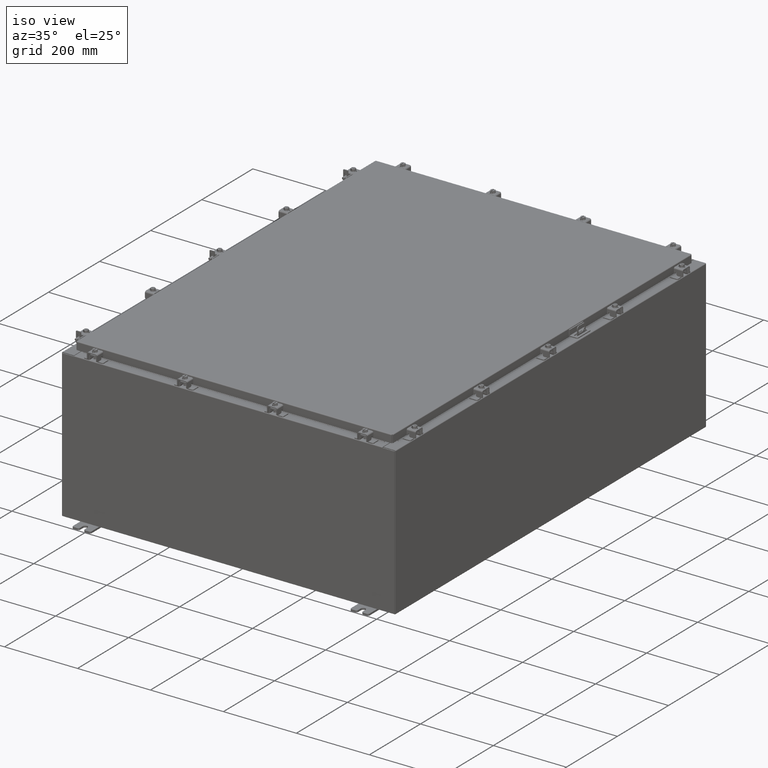
[diagram: clean part render]
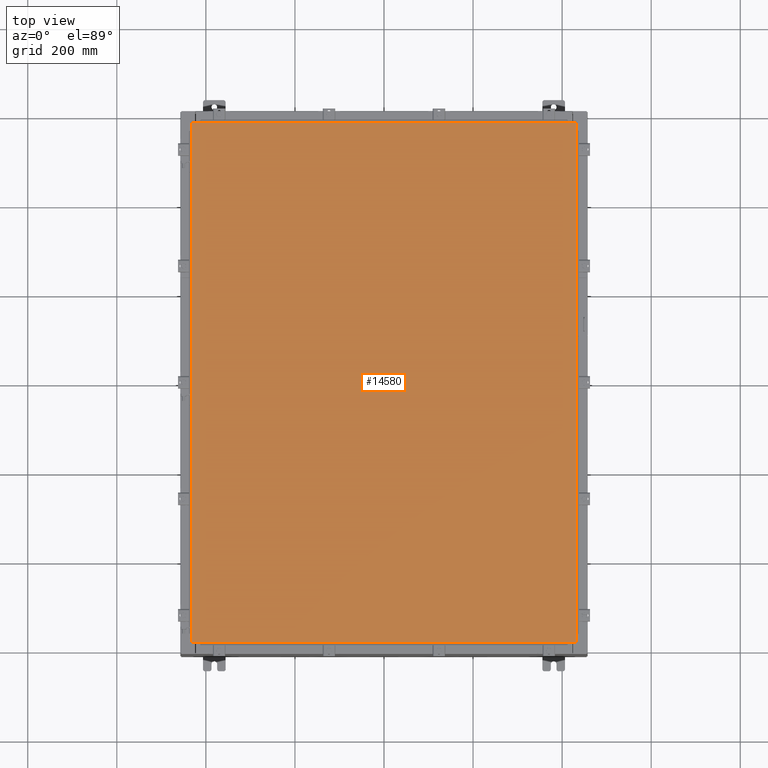
[diagram: tour spotlight — one face highlighted and labeled with its STEP entity id]
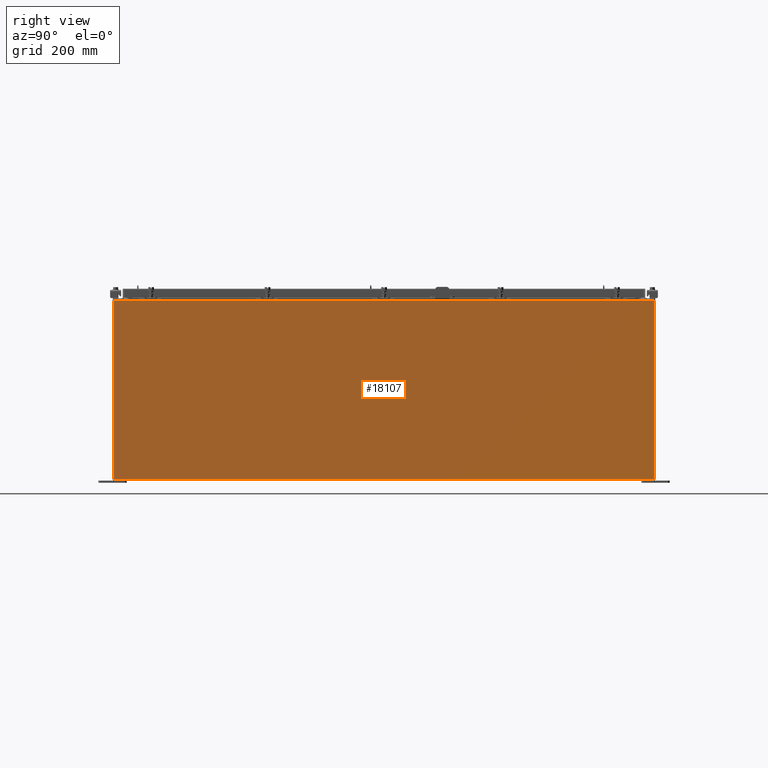
[diagram: tour spotlight — one face highlighted and labeled with its STEP entity id]
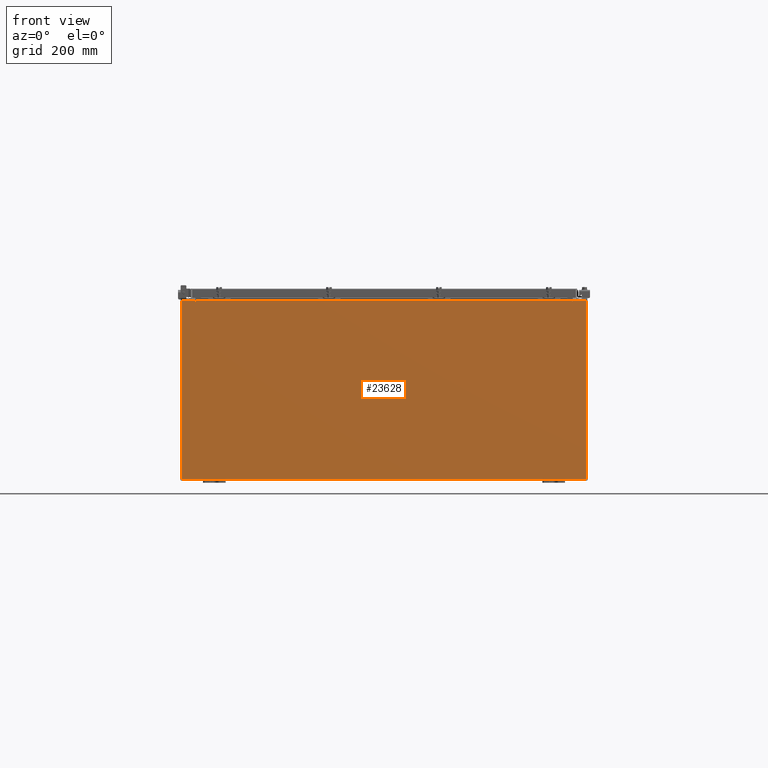
[diagram: tour spotlight — one face highlighted and labeled with its STEP entity id]
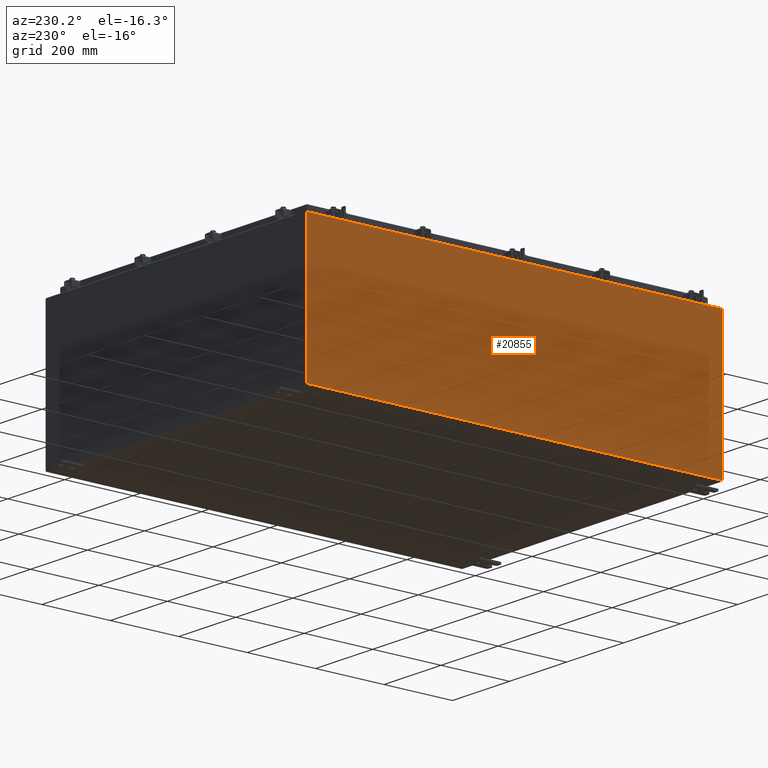
[diagram: tour spotlight — one face highlighted and labeled with its STEP entity id]
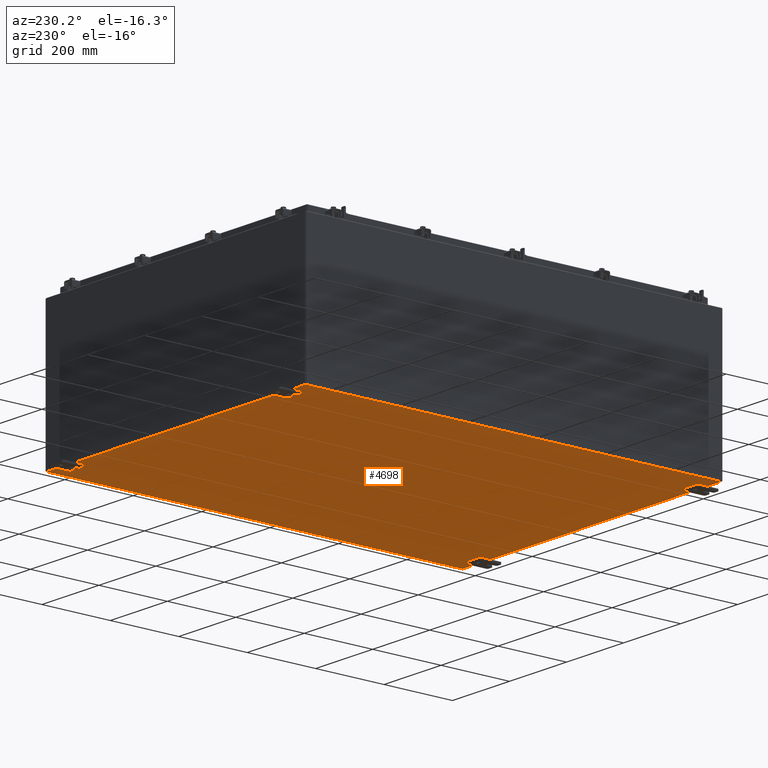
[diagram: tour spotlight — one face highlighted and labeled with its STEP entity id]
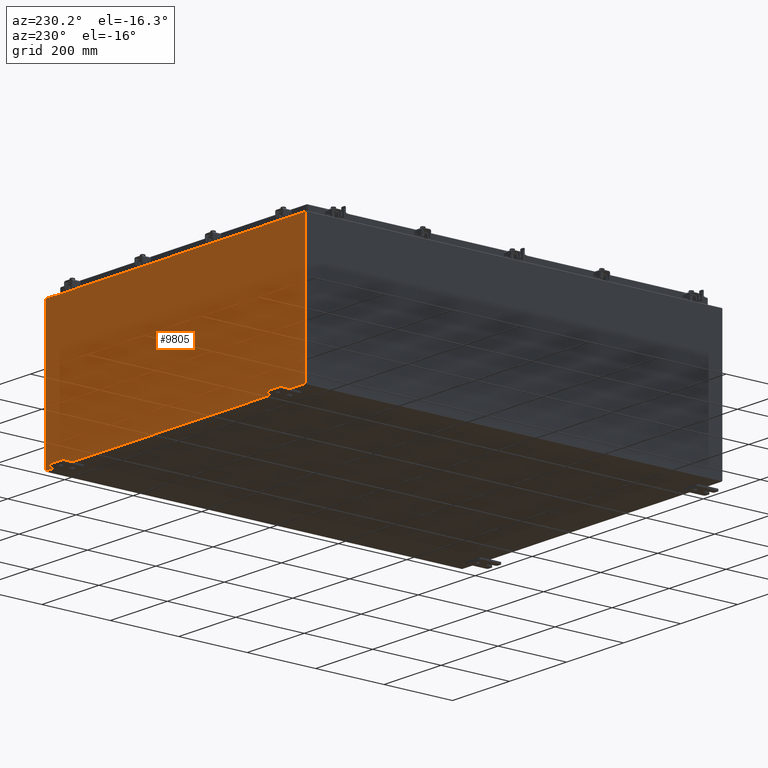
[diagram: tour spotlight — one face highlighted and labeled with its STEP entity id]
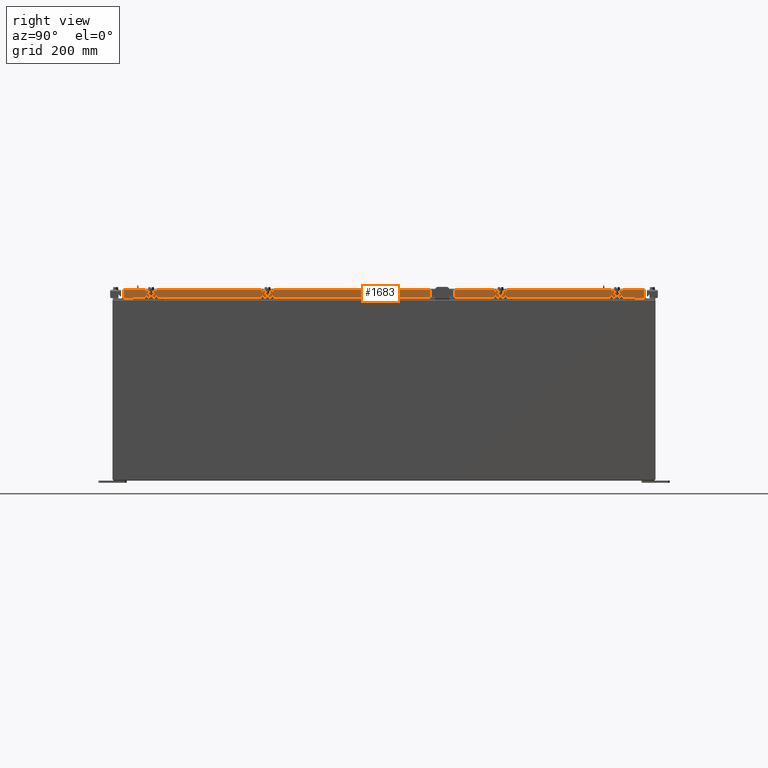
[diagram: tour spotlight — one face highlighted and labeled with its STEP entity id]
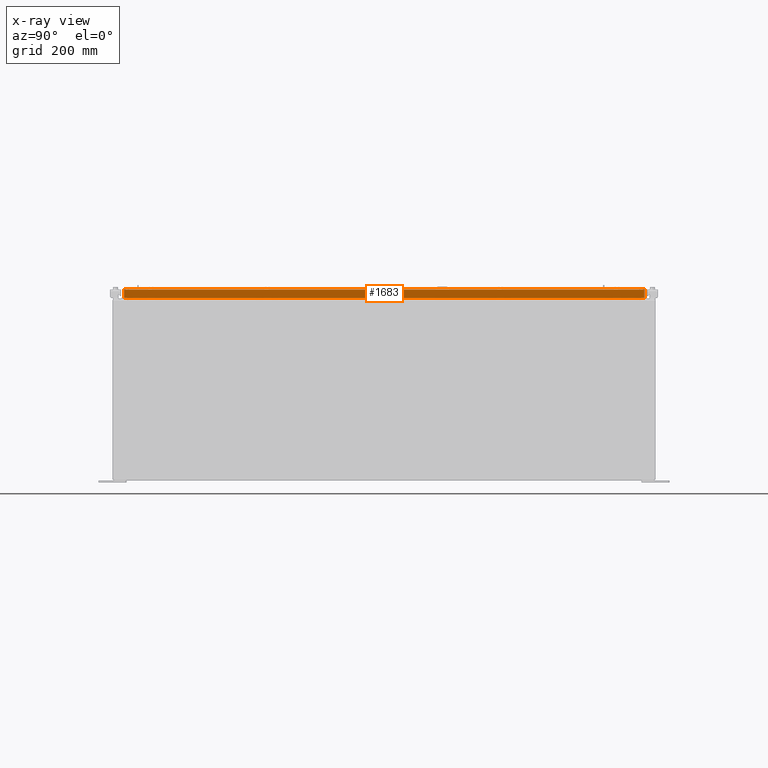
[diagram: x-ray of the same camera — body ghosted, this tour face saturated]
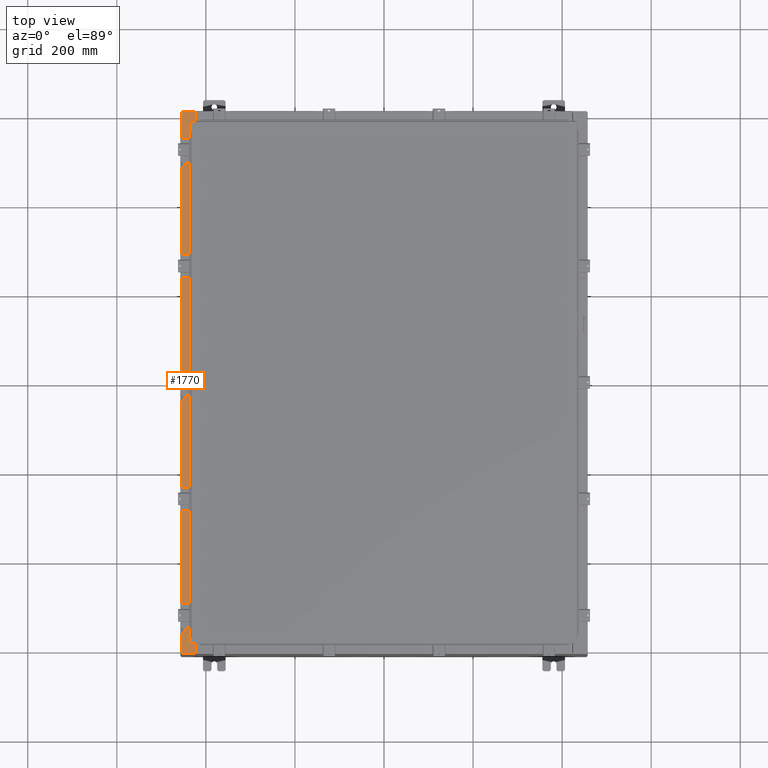
[diagram: tour spotlight — one face highlighted and labeled with its STEP entity id]
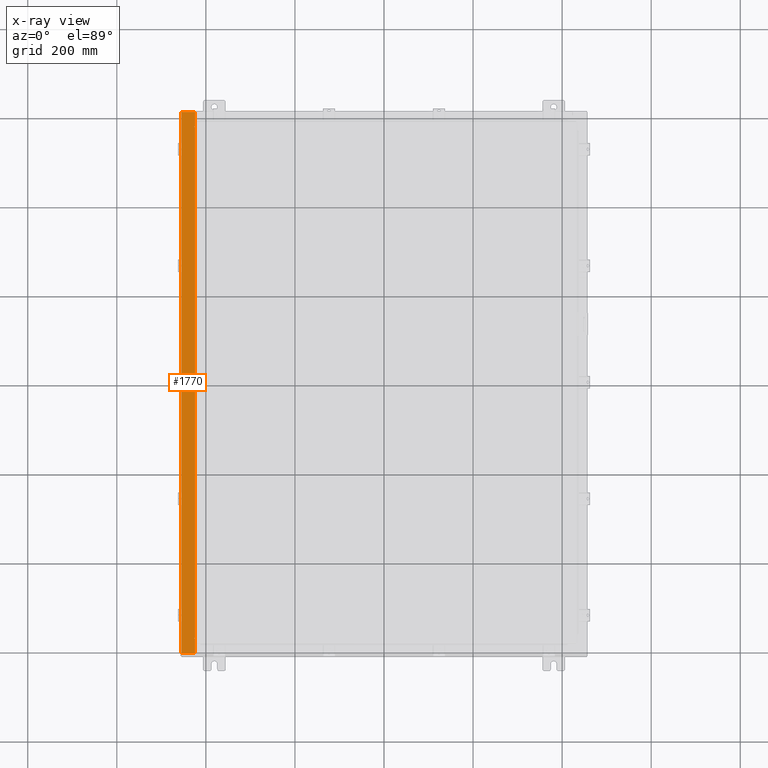
[diagram: x-ray of the same camera — body ghosted, this tour face saturated]
A machine part: a face-by-face anatomy tour. The part has 3106 B-rep faces; the first image is the clean iso view, then the 8 largest visible faces are spotlighted one at a time (largest first), each with its STEP entity span.

Face 1 — top view, entity #14580. In plain terms, the highlighted planar face has unit normal (0, 0, -1).
Definition (entity closure, byte-faithful):
#343 = VERTEX_POINT ( 'NONE', #18543 ) ;
#394 = DIRECTION ( 'NONE',  ( 0.0000000000000000000, -1.000000000000000000, 0.0000000000000000000 ) ) ;
#1682 = VECTOR ( 'NONE', #394, 39.37007874015748100 ) ;
#2509 = CARTESIAN_POINT ( 'NONE',  ( -16.99029999999999800, -23.00630000000000000, 2.185478394931410600E-015 ) ) ;
#2613 = LINE ( 'NONE', #18093, #7542 ) ;
#2720 = ORIENTED_EDGE ( 'NONE', *, *, #12445, .T. ) ;
#3431 = ORIENTED_EDGE ( 'NONE', *, *, #26626, .T. ) ;
#3873 = PLANE ( 'NONE',  #25420 ) ;
#4487 = ORIENTED_EDGE ( 'NONE', *, *, #18501, .T. ) ;
#4589 = DIRECTION ( 'NONE',  ( 1.000000000000000000, -0.0000000000000000000, -0.0000000000000000000 ) ) ;
#7028 = VERTEX_POINT ( 'NONE', #10307 ) ;
#7542 = VECTOR ( 'NONE', #15935, 39.37007874015748100 ) ;
#7572 = VECTOR ( 'NONE', #4589, 39.37007874015748100 ) ;
#9420 = FACE_OUTER_BOUND ( 'NONE', #18308, .T. ) ;
#10208 = DIRECTION ( 'NONE',  ( 0.0000000000000000000, 0.0000000000000000000, -1.000000000000000000 ) ) ;
#10307 = CARTESIAN_POINT ( 'NONE',  ( 16.99029999999999800, 23.00630000000000000, 2.185478394931410600E-015 ) ) ;
#12279 = CARTESIAN_POINT ( 'NONE',  ( -16.99029999999999800, 23.00629999999999600, 0.0000000000000000000 ) ) ;
#12445 = EDGE_CURVE ( 'NONE', #7028, #19993, #2613, .T. ) ;
#13658 = VECTOR ( 'NONE', #16423, 39.37007874015748100 ) ;
#14580 = ADVANCED_FACE ( 'NONE', ( #9420 ), #3873, .F. ) ;
#15053 = CARTESIAN_POINT ( 'NONE',  ( -16.99029999999999800, 23.00629999999999600, 0.0000000000000000000 ) ) ;
#15935 = DIRECTION ( 'NONE',  ( -1.000000000000000000, -0.0000000000000000000, -0.0000000000000000000 ) ) ;
#16423 = DIRECTION ( 'NONE',  ( 0.0000000000000000000, 1.000000000000000000, 0.0000000000000000000 ) ) ;
#16831 = VERTEX_POINT ( 'NONE', #20169 ) ;
#18093 = CARTESIAN_POINT ( 'NONE',  ( 16.99029999999999800, 23.00630000000000000, 2.185478394931410600E-015 ) ) ;
#18308 = EDGE_LOOP ( 'NONE', ( #4487, #3431, #2720, #22060 ) ) ;
#18501 = EDGE_CURVE ( 'NONE', #16831, #343, #25104, .T. ) ;
#18543 = CARTESIAN_POINT ( 'NONE',  ( 16.99030000000000100, -23.00629999999999600, -2.185478394931410600E-015 ) ) ;
#19993 = VERTEX_POINT ( 'NONE', #12279 ) ;
#20169 = CARTESIAN_POINT ( 'NONE',  ( -16.99029999999999800, -23.00630000000000000, 2.185478394931410600E-015 ) ) ;
#22060 = ORIENTED_EDGE ( 'NONE', *, *, #22274, .T. ) ;
#22274 = EDGE_CURVE ( 'NONE', #19993, #16831, #24788, .T. ) ;
#22908 = CARTESIAN_POINT ( 'NONE',  ( 0.0000000000000000000, 0.0000000000000000000, 0.0000000000000000000 ) ) ;
#24788 = LINE ( 'NONE', #15053, #1682 ) ;
#24922 = LINE ( 'NONE', #26938, #13658 ) ;
#25023 = DIRECTION ( 'NONE',  ( -1.000000000000000000, 0.0000000000000000000, -0.0000000000000000000 ) ) ;
#25104 = LINE ( 'NONE', #2509, #7572 ) ;
#25420 = AXIS2_PLACEMENT_3D ( 'NONE', #22908, #10208, #25023 ) ;
#26626 = EDGE_CURVE ( 'NONE', #343, #7028, #24922, .T. ) ;
#26938 = CARTESIAN_POINT ( 'NONE',  ( 16.99030000000000100, -23.00629999999999600, -2.185478394931410600E-015 ) ) ;

Face 2 — right view, entity #18107. In plain terms, the highlighted planar face has unit normal (-1, 0, 0).
Definition (entity closure, byte-faithful):
#530 = VECTOR ( 'NONE', #10461, 39.37007874015748100 ) ;
#1042 = EDGE_CURVE ( 'NONE', #4386, #9455, #3472, .T. ) ;
#1557 = EDGE_CURVE ( 'NONE', #4431, #25116, #6058, .T. ) ;
#2364 = ORIENTED_EDGE ( 'NONE', *, *, #19955, .T. ) ;
#3080 = CARTESIAN_POINT ( 'NONE',  ( 17.99999999999999600, 0.0000000000000000000, -6.228613425554519900E-014 ) ) ;
#3170 = DIRECTION ( 'NONE',  ( -3.430827668758847500E-015, 0.0000000000000000000, -1.000000000000000000 ) ) ;
#3346 = EDGE_LOOP ( 'NONE', ( #2364, #6004, #15743, #22625 ) ) ;
#3472 = LINE ( 'NONE', #23834, #25274 ) ;
#4386 = VERTEX_POINT ( 'NONE', #15395 ) ;
#4431 = VERTEX_POINT ( 'NONE', #9636 ) ;
#5085 = PLANE ( 'NONE',  #24259 ) ;
#5819 = CARTESIAN_POINT ( 'NONE',  ( 18.00000000000005000, 23.92529999999998900, 15.83760000000001400 ) ) ;
#6004 = ORIENTED_EDGE ( 'NONE', *, *, #1042, .T. ) ;
#6058 = LINE ( 'NONE', #16168, #530 ) ;
#7297 = DIRECTION ( 'NONE',  ( 3.430827668758846700E-015, 0.0000000000000000000, 1.000000000000000000 ) ) ;
#7933 = DIRECTION ( 'NONE',  ( -0.0000000000000000000, -1.000000000000000000, -0.0000000000000000000 ) ) ;
#9455 = VERTEX_POINT ( 'NONE', #21977 ) ;
#9636 = CARTESIAN_POINT ( 'NONE',  ( 17.99999999999999600, 23.92529999999998600, 0.01300000000000229300 ) ) ;
#10461 = DIRECTION ( 'NONE',  ( 3.430827668758847500E-015, 0.0000000000000000000, 1.000000000000000000 ) ) ;
#10936 = LINE ( 'NONE', #5819, #27141 ) ;
#14536 = CARTESIAN_POINT ( 'NONE',  ( 17.99999999999999600, -23.92529999999998900, 0.01300000000000010700 ) ) ;
#14626 = DIRECTION ( 'NONE',  ( -1.566960444969418600E-031, -1.000000000000000000, -4.567295697298285000E-017 ) ) ;
#15395 = CARTESIAN_POINT ( 'NONE',  ( 18.00000000000005000, -23.92529999999998900, 15.83760000000000200 ) ) ;
#15743 = ORIENTED_EDGE ( 'NONE', *, *, #17080, .F. ) ;
#16168 = CARTESIAN_POINT ( 'NONE',  ( 17.99999999999999600, 23.92529999999998900, -6.228613425554519900E-014 ) ) ;
#16202 = FACE_OUTER_BOUND ( 'NONE', #3346, .T. ) ;
#16249 = VECTOR ( 'NONE', #14626, 39.37007874015748100 ) ;
#16366 = CARTESIAN_POINT ( 'NONE',  ( 18.00000000000005000, 23.92529999999998600, 15.83760000000001400 ) ) ;
#17080 = EDGE_CURVE ( 'NONE', #4431, #9455, #21894, .T. ) ;
#18107 = ADVANCED_FACE ( 'NONE', ( #16202 ), #5085, .F. ) ;
#19955 = EDGE_CURVE ( 'NONE', #25116, #4386, #10936, .T. ) ;
#20009 = DIRECTION ( 'NONE',  ( -1.000000000000000000, 0.0000000000000000000, 3.430827668758846700E-015 ) ) ;
#21894 = LINE ( 'NONE', #14536, #16249 ) ;
#21977 = CARTESIAN_POINT ( 'NONE',  ( 17.99999999999999600, -23.92529999999998900, 0.01299999999999901400 ) ) ;
#22625 = ORIENTED_EDGE ( 'NONE', *, *, #1557, .T. ) ;
#23834 = CARTESIAN_POINT ( 'NONE',  ( 17.99999999999999600, -23.92529999999998900, -6.228613425554519900E-014 ) ) ;
#24259 = AXIS2_PLACEMENT_3D ( 'NONE', #3080, #20009, #7297 ) ;
#25116 = VERTEX_POINT ( 'NONE', #16366 ) ;
#25274 = VECTOR ( 'NONE', #3170, 39.37007874015748100 ) ;
#27141 = VECTOR ( 'NONE', #7933, 39.37007874015748100 ) ;

Face 3 — front view, entity #23628. In plain terms, the highlighted planar face has unit normal (0, 1, -0).
Definition (entity closure, byte-faithful):
#63 = VERTEX_POINT ( 'NONE', #11701 ) ;
#127 = CARTESIAN_POINT ( 'NONE',  ( -17.92530000000000000, 0.0000000000000000000, -7.925300000000016000 ) ) ;
#429 = VERTEX_POINT ( 'NONE', #12732 ) ;
#551 = VERTEX_POINT ( 'NONE', #8391 ) ;
#661 = EDGE_CURVE ( 'NONE', #19381, #14675, #12051, .T. ) ;
#897 = VECTOR ( 'NONE', #17053, 39.37007874015748100 ) ;
#1186 = VECTOR ( 'NONE', #17165, 39.37007874015748100 ) ;
#1198 = VERTEX_POINT ( 'NONE', #21445 ) ;
#1285 = LINE ( 'NONE', #25823, #16750 ) ;
#1544 = EDGE_CURVE ( 'NONE', #14675, #429, #6706, .T. ) ;
#1777 = VECTOR ( 'NONE', #21071, 39.37007874015748100 ) ;
#1868 = PLANE ( 'NONE',  #18217 ) ;
#1916 = CARTESIAN_POINT ( 'NONE',  ( -16.63720000000000400, -4.370956789862821100E-015, 7.912299999999989500 ) ) ;
#2004 = DIRECTION ( 'NONE',  ( 1.000000000000000000, 3.225867722578232700E-016, 9.992007221626408900E-016 ) ) ;
#2369 = CIRCLE ( 'NONE', #19530, 0.01867499999999949400 ) ;
#2559 = VECTOR ( 'NONE', #8968, 39.37007874015748100 ) ;
#2569 = EDGE_CURVE ( 'NONE', #7300, #63, #12940, .T. ) ;
#2729 = ORIENTED_EDGE ( 'NONE', *, *, #19826, .F. ) ;
#2763 = LINE ( 'NONE', #1916, #8326 ) ;
#3090 = EDGE_CURVE ( 'NONE', #18361, #63, #2763, .T. ) ;
#3493 = EDGE_CURVE ( 'NONE', #551, #18762, #12948, .T. ) ;
#3738 = ORIENTED_EDGE ( 'NONE', *, *, #3493, .T. ) ;
#3804 = ORIENTED_EDGE ( 'NONE', *, *, #2569, .F. ) ;
#4130 = CARTESIAN_POINT ( 'NONE',  ( -17.92530000000000000, 0.0000000000000000000, 7.925299999999983100 ) ) ;
#4417 = ORIENTED_EDGE ( 'NONE', *, *, #5374, .T. ) ;
#5035 = CARTESIAN_POINT ( 'NONE',  ( -17.92530000000000000, 0.0000000000000000000, -7.925300000000016000 ) ) ;
#5374 = EDGE_CURVE ( 'NONE', #18762, #19381, #25393, .T. ) ;
#6060 = DIRECTION ( 'NONE',  ( -3.225867722578236700E-016, -1.000000000000000000, -2.013110121372518100E-016 ) ) ;
#6137 = CARTESIAN_POINT ( 'NONE',  ( -17.92530000000000000, 0.0000000000000000000, 7.925299999999983100 ) ) ;
#6222 = VERTEX_POINT ( 'NONE', #11119 ) ;
#6283 = EDGE_CURVE ( 'NONE', #18361, #1198, #1285, .T. ) ;
#6706 = LINE ( 'NONE', #19758, #1186 ) ;
#6850 = ORIENTED_EDGE ( 'NONE', *, *, #6283, .F. ) ;
#7300 = VERTEX_POINT ( 'NONE', #9944 ) ;
#7343 = VECTOR ( 'NONE', #18993, 39.37007874015748100 ) ;
#7584 = CARTESIAN_POINT ( 'NONE',  ( 16.65587500000000200, 0.0000000000000000000, 7.874950000000016100 ) ) ;
#8122 = LINE ( 'NONE', #17396, #2559 ) ;
#8326 = VECTOR ( 'NONE', #2004, 39.37007874015748100 ) ;
#8391 = CARTESIAN_POINT ( 'NONE',  ( 17.92530000000000000, 0.0000000000000000000, 7.925300000000014200 ) ) ;
#8968 = DIRECTION ( 'NONE',  ( 9.992007221626408900E-016, -2.013110121372521300E-016, 1.000000000000000000 ) ) ;
#9506 = FACE_OUTER_BOUND ( 'NONE', #13136, .T. ) ;
#9649 = EDGE_CURVE ( 'NONE', #27107, #23593, #23206, .T. ) ;
#9707 = DIRECTION ( 'NONE',  ( 0.0000000000000000000, 2.013110121372521000E-016, -1.000000000000000000 ) ) ;
#9944 = CARTESIAN_POINT ( 'NONE',  ( 16.63720000000000400, 0.0000000000000000000, 7.874950000000016100 ) ) ;
#10202 = CARTESIAN_POINT ( 'NONE',  ( 0.0000000000000000000, 0.0000000000000000000, 0.0000000000000000000 ) ) ;
#11119 = CARTESIAN_POINT ( 'NONE',  ( -16.67455000000000000, 0.0000000000000000000, 7.874949999999983200 ) ) ;
#11401 = CARTESIAN_POINT ( 'NONE',  ( 16.67455000000000700, 0.0000000000000000000, 7.925300000000014200 ) ) ;
#11686 = ORIENTED_EDGE ( 'NONE', *, *, #3090, .T. ) ;
#11701 = CARTESIAN_POINT ( 'NONE',  ( 16.63720000000000400, 0.0000000000000000000, 7.912300000000016100 ) ) ;
#11993 = DIRECTION ( 'NONE',  ( 3.225867722578232700E-016, 1.000000000000000000, -2.013110121372520500E-016 ) ) ;
#12051 = LINE ( 'NONE', #25307, #897 ) ;
#12628 = CARTESIAN_POINT ( 'NONE',  ( -16.63720000000000400, -4.370956789862821100E-015, 7.912299999999989500 ) ) ;
#12732 = CARTESIAN_POINT ( 'NONE',  ( -16.67455000000000000, 0.0000000000000000000, 7.925299999999983100 ) ) ;
#12940 = LINE ( 'NONE', #19344, #7343 ) ;
#12948 = LINE ( 'NONE', #20645, #1777 ) ;
#13136 = EDGE_LOOP ( 'NONE', ( #23187, #18446, #6850, #11686, #3804, #2729, #22056, #17442, #3738, #4417, #21241, #23129 ) ) ;
#13527 = EDGE_CURVE ( 'NONE', #6222, #429, #8122, .T. ) ;
#14000 = CARTESIAN_POINT ( 'NONE',  ( 17.92530000000000000, 0.0000000000000000000, -7.925299999999983100 ) ) ;
#14126 = VECTOR ( 'NONE', #25957, 39.37007874015748100 ) ;
#14675 = VERTEX_POINT ( 'NONE', #4130 ) ;
#16307 = AXIS2_PLACEMENT_3D ( 'NONE', #7584, #22407, #9707 ) ;
#16750 = VECTOR ( 'NONE', #23520, 39.37007874015748100 ) ;
#16906 = LINE ( 'NONE', #6137, #23876 ) ;
#17053 = DIRECTION ( 'NONE',  ( 9.992007221626408900E-016, -2.013110121372521300E-016, 1.000000000000000000 ) ) ;
#17067 = EDGE_CURVE ( 'NONE', #27107, #551, #16906, .T. ) ;
#17165 = DIRECTION ( 'NONE',  ( 1.000000000000000000, 3.225867722578232700E-016, 9.382400019813492300E-016 ) ) ;
#17396 = CARTESIAN_POINT ( 'NONE',  ( -16.67455000000000000, 0.0000000000000000000, -1.639108796198557900E-014 ) ) ;
#17442 = ORIENTED_EDGE ( 'NONE', *, *, #17067, .T. ) ;
#17584 = VECTOR ( 'NONE', #24625, 39.37007874015748100 ) ;
#18217 = AXIS2_PLACEMENT_3D ( 'NONE', #10202, #6060, #20886 ) ;
#18361 = VERTEX_POINT ( 'NONE', #12628 ) ;
#18446 = ORIENTED_EDGE ( 'NONE', *, *, #20466, .F. ) ;
#18595 = CARTESIAN_POINT ( 'NONE',  ( 16.67455000000000000, 0.0000000000000000000, 7.874950000000016100 ) ) ;
#18612 = CIRCLE ( 'NONE', #16307, 0.01867499999999949400 ) ;
#18762 = VERTEX_POINT ( 'NONE', #14000 ) ;
#18849 = DIRECTION ( 'NONE',  ( 1.000000000000000000, 3.225867722578232700E-016, 9.382400019813492300E-016 ) ) ;
#18993 = DIRECTION ( 'NONE',  ( 9.992007221626408900E-016, -2.013110121372521300E-016, 1.000000000000000000 ) ) ;
#19344 = CARTESIAN_POINT ( 'NONE',  ( 16.63720000000000400, 0.0000000000000000000, 1.639108796198557900E-014 ) ) ;
#19381 = VERTEX_POINT ( 'NONE', #5035 ) ;
#19530 = AXIS2_PLACEMENT_3D ( 'NONE', #24671, #11993, #26780 ) ;
#19758 = CARTESIAN_POINT ( 'NONE',  ( -17.92530000000000000, 0.0000000000000000000, 7.925299999999983100 ) ) ;
#19826 = EDGE_CURVE ( 'NONE', #23593, #7300, #18612, .T. ) ;
#20466 = EDGE_CURVE ( 'NONE', #1198, #6222, #2369, .T. ) ;
#20645 = CARTESIAN_POINT ( 'NONE',  ( 17.92530000000000000, 0.0000000000000000000, 7.925300000000014200 ) ) ;
#20886 = DIRECTION ( 'NONE',  ( -9.992007221626408900E-016, 2.013110121372521300E-016, -1.000000000000000000 ) ) ;
#21071 = DIRECTION ( 'NONE',  ( -9.992007221626414800E-016, 2.013110121372520300E-016, -1.000000000000000000 ) ) ;
#21241 = ORIENTED_EDGE ( 'NONE', *, *, #661, .T. ) ;
#21445 = CARTESIAN_POINT ( 'NONE',  ( -16.63720000000000400, 0.0000000000000000000, 7.874949999999983200 ) ) ;
#22056 = ORIENTED_EDGE ( 'NONE', *, *, #9649, .F. ) ;
#22407 = DIRECTION ( 'NONE',  ( 3.225867722578232700E-016, 1.000000000000000000, -2.013110121372520500E-016 ) ) ;
#22517 = CARTESIAN_POINT ( 'NONE',  ( 16.67454999999931800, 0.0000000000000000000, -1.431078571481024200E-012 ) ) ;
#23129 = ORIENTED_EDGE ( 'NONE', *, *, #1544, .T. ) ;
#23187 = ORIENTED_EDGE ( 'NONE', *, *, #13527, .F. ) ;
#23206 = LINE ( 'NONE', #22517, #17584 ) ;
#23520 = DIRECTION ( 'NONE',  ( -9.992007221626408900E-016, 2.013110121372521300E-016, -1.000000000000000000 ) ) ;
#23593 = VERTEX_POINT ( 'NONE', #18595 ) ;
#23628 = ADVANCED_FACE ( 'NONE', ( #9506 ), #1868, .F. ) ;
#23876 = VECTOR ( 'NONE', #18849, 39.37007874015748100 ) ;
#24625 = DIRECTION ( 'NONE',  ( -8.781065633016651300E-014, 2.013110121372241000E-016, -1.000000000000000000 ) ) ;
#24671 = CARTESIAN_POINT ( 'NONE',  ( -16.65587500000000200, 0.0000000000000000000, 7.874949999999983200 ) ) ;
#25307 = CARTESIAN_POINT ( 'NONE',  ( -17.92530000000000000, 0.0000000000000000000, 7.925299999999983100 ) ) ;
#25393 = LINE ( 'NONE', #127, #14126 ) ;
#25823 = CARTESIAN_POINT ( 'NONE',  ( -16.63720000000000400, 0.0000000000000000000, -1.639108796198557900E-014 ) ) ;
#25957 = DIRECTION ( 'NONE',  ( -1.000000000000000000, -3.225867722578232700E-016, -9.992007221626408900E-016 ) ) ;
#26780 = DIRECTION ( 'NONE',  ( 0.0000000000000000000, 2.013110121372521000E-016, -1.000000000000000000 ) ) ;
#27107 = VERTEX_POINT ( 'NONE', #11401 ) ;

Face 4 — auxiliary view, entity #20855. In plain terms, the highlighted planar face has unit normal (1, 0, 0).
Definition (entity closure, byte-faithful):
#521 = EDGE_CURVE ( 'NONE', #8528, #21095, #2846, .T. ) ;
#1527 = CARTESIAN_POINT ( 'NONE',  ( -18.00000000000006000, -23.92529999999998900, 15.83759999999998200 ) ) ;
#1711 = AXIS2_PLACEMENT_3D ( 'NONE', #8818, #17341, #4662 ) ;
#2593 = PLANE ( 'NONE',  #1711 ) ;
#2806 = LINE ( 'NONE', #19215, #24608 ) ;
#2846 = LINE ( 'NONE', #24207, #24642 ) ;
#3057 = LINE ( 'NONE', #5381, #24214 ) ;
#3281 = DIRECTION ( 'NONE',  ( 3.430827668758847900E-015, 0.0000000000000000000, -1.000000000000000000 ) ) ;
#4151 = ORIENTED_EDGE ( 'NONE', *, *, #521, .T. ) ;
#4314 = CARTESIAN_POINT ( 'NONE',  ( -18.00000000000000400, 23.92529999999998900, 0.01300000000000010700 ) ) ;
#4662 = DIRECTION ( 'NONE',  ( 3.430827668758847900E-015, 0.0000000000000000000, -1.000000000000000000 ) ) ;
#4945 = ORIENTED_EDGE ( 'NONE', *, *, #26826, .F. ) ;
#5055 = VECTOR ( 'NONE', #16250, 39.37007874015748100 ) ;
#5347 = CARTESIAN_POINT ( 'NONE',  ( -18.00000000000000400, -23.92529999999998600, 0.01300000000000010700 ) ) ;
#5381 = CARTESIAN_POINT ( 'NONE',  ( -18.00000000000000400, 23.92529999999998900, -6.228613425554519900E-014 ) ) ;
#5705 = CARTESIAN_POINT ( 'NONE',  ( -18.00000000000006000, 23.92529999999998900, 15.83759999999999500 ) ) ;
#5750 = VERTEX_POINT ( 'NONE', #5705 ) ;
#6133 = EDGE_LOOP ( 'NONE', ( #18652, #24123, #4945, #4151 ) ) ;
#8528 = VERTEX_POINT ( 'NONE', #5347 ) ;
#8584 = EDGE_CURVE ( 'NONE', #21095, #5750, #22621, .T. ) ;
#8818 = CARTESIAN_POINT ( 'NONE',  ( -18.00000000000000400, 0.0000000000000000000, -6.228613425554519900E-014 ) ) ;
#13023 = VERTEX_POINT ( 'NONE', #4314 ) ;
#16250 = DIRECTION ( 'NONE',  ( 0.0000000000000000000, 1.000000000000000000, 0.0000000000000000000 ) ) ;
#17341 = DIRECTION ( 'NONE',  ( 1.000000000000000000, 0.0000000000000000000, 3.430827668758847900E-015 ) ) ;
#18652 = ORIENTED_EDGE ( 'NONE', *, *, #8584, .T. ) ;
#19209 = FACE_OUTER_BOUND ( 'NONE', #6133, .T. ) ;
#19215 = CARTESIAN_POINT ( 'NONE',  ( -18.00000000000000400, 23.92529999999998900, 0.01300000000000010700 ) ) ;
#19797 = EDGE_CURVE ( 'NONE', #5750, #13023, #3057, .T. ) ;
#20855 = ADVANCED_FACE ( 'NONE', ( #19209 ), #2593, .F. ) ;
#21095 = VERTEX_POINT ( 'NONE', #24470 ) ;
#21324 = DIRECTION ( 'NONE',  ( -0.0000000000000000000, 1.000000000000000000, -0.0000000000000000000 ) ) ;
#22621 = LINE ( 'NONE', #1527, #5055 ) ;
#24123 = ORIENTED_EDGE ( 'NONE', *, *, #19797, .T. ) ;
#24207 = CARTESIAN_POINT ( 'NONE',  ( -18.00000000000000400, -23.92529999999999600, -6.228613425554519900E-014 ) ) ;
#24214 = VECTOR ( 'NONE', #3281, 39.37007874015748100 ) ;
#24470 = CARTESIAN_POINT ( 'NONE',  ( -18.00000000000006000, -23.92529999999998600, 15.83759999999998200 ) ) ;
#24608 = VECTOR ( 'NONE', #21324, 39.37007874015748100 ) ;
#24642 = VECTOR ( 'NONE', #24966, 39.37007874015748100 ) ;
#24966 = DIRECTION ( 'NONE',  ( -3.430827668758847900E-015, 0.0000000000000000000, 1.000000000000000000 ) ) ;
#26826 = EDGE_CURVE ( 'NONE', #8528, #13023, #2806, .T. ) ;

Face 5 — auxiliary view, entity #4698. In plain terms, the highlighted planar face has unit normal (0, 0, -1).
Definition (entity closure, byte-faithful):
#1038 = DIRECTION ( 'NONE',  ( 1.000000000000000000, 1.214154663850783700E-016, 0.0000000000000000000 ) ) ;
#2621 = EDGE_CURVE ( 'NONE', #19086, #12702, #5719, .T. ) ;
#3076 = AXIS2_PLACEMENT_3D ( 'NONE', #16175, #15128, #15075 ) ;
#3137 = ORIENTED_EDGE ( 'NONE', *, *, #21556, .F. ) ;
#3683 = VERTEX_POINT ( 'NONE', #13552 ) ;
#4698 = ADVANCED_FACE ( 'NONE', ( #21145 ), #15224, .T. ) ;
#5719 = LINE ( 'NONE', #17316, #21966 ) ;
#6955 = DIRECTION ( 'NONE',  ( -1.000000000000000000, -0.0000000000000000000, -0.0000000000000000000 ) ) ;
#8774 = CARTESIAN_POINT ( 'NONE',  ( 17.91229999999999500, -23.92530000000000000, -0.07470000000000015500 ) ) ;
#9074 = CARTESIAN_POINT ( 'NONE',  ( -18.00000000000000400, 23.92530000000000000, -0.07470000000000015500 ) ) ;
#9502 = EDGE_CURVE ( 'NONE', #3683, #12702, #20276, .T. ) ;
#12702 = VERTEX_POINT ( 'NONE', #8774 ) ;
#12900 = CARTESIAN_POINT ( 'NONE',  ( -17.91230000000000500, 23.92529999999998900, -0.07470000000000015500 ) ) ;
#13089 = ORIENTED_EDGE ( 'NONE', *, *, #17279, .T. ) ;
#13115 = VERTEX_POINT ( 'NONE', #12900 ) ;
#13142 = CARTESIAN_POINT ( 'NONE',  ( -17.91230000000000500, -23.92529999999998900, -0.07470000000000015500 ) ) ;
#13552 = CARTESIAN_POINT ( 'NONE',  ( -17.91230000000000500, -23.92529999999998600, -0.07470000000000015500 ) ) ;
#13609 = CARTESIAN_POINT ( 'NONE',  ( -18.00000000000000400, -23.92530000000000400, -0.07470000000000015500 ) ) ;
#13922 = VECTOR ( 'NONE', #1038, 39.37007874015748100 ) ;
#14113 = ORIENTED_EDGE ( 'NONE', *, *, #9502, .F. ) ;
#15075 = DIRECTION ( 'NONE',  ( -1.000000000000000000, 0.0000000000000000000, -0.0000000000000000000 ) ) ;
#15128 = DIRECTION ( 'NONE',  ( 0.0000000000000000000, 0.0000000000000000000, -1.000000000000000000 ) ) ;
#15224 = PLANE ( 'NONE',  #3076 ) ;
#16175 = CARTESIAN_POINT ( 'NONE',  ( 0.0000000000000000000, 0.0000000000000000000, -0.07470000000000015500 ) ) ;
#17106 = DIRECTION ( 'NONE',  ( -0.0000000000000000000, -1.000000000000000000, -8.208677865577646300E-017 ) ) ;
#17279 = EDGE_CURVE ( 'NONE', #3683, #13115, #17926, .T. ) ;
#17316 = CARTESIAN_POINT ( 'NONE',  ( 17.91229999999999500, 23.92529999999998900, -0.07469999999999688000 ) ) ;
#17926 = LINE ( 'NONE', #13142, #22858 ) ;
#19086 = VERTEX_POINT ( 'NONE', #19211 ) ;
#19211 = CARTESIAN_POINT ( 'NONE',  ( 17.91229999999999500, 23.92529999999998600, -0.07469999999999688000 ) ) ;
#20276 = LINE ( 'NONE', #13609, #13922 ) ;
#20825 = VECTOR ( 'NONE', #6955, 39.37007874015748100 ) ;
#21145 = FACE_OUTER_BOUND ( 'NONE', #21399, .T. ) ;
#21399 = EDGE_LOOP ( 'NONE', ( #14113, #13089, #3137, #26829 ) ) ;
#21556 = EDGE_CURVE ( 'NONE', #19086, #13115, #26426, .T. ) ;
#21697 = DIRECTION ( 'NONE',  ( -0.0000000000000000000, 1.000000000000000000, -0.0000000000000000000 ) ) ;
#21966 = VECTOR ( 'NONE', #17106, 39.37007874015748100 ) ;
#22858 = VECTOR ( 'NONE', #21697, 39.37007874015748100 ) ;
#26426 = LINE ( 'NONE', #9074, #20825 ) ;
#26829 = ORIENTED_EDGE ( 'NONE', *, *, #2621, .T. ) ;

Face 6 — auxiliary view, entity #9805. In plain terms, the highlighted planar face has unit normal (0, -1, 0).
Definition (entity closure, byte-faithful):
#781 = CARTESIAN_POINT ( 'NONE',  ( -16.67455000000000000, 0.0000000000000000000, 7.925300000000000900 ) ) ;
#800 = VERTEX_POINT ( 'NONE', #12149 ) ;
#874 = CARTESIAN_POINT ( 'NONE',  ( 17.92530000000000000, 0.0000000000000000000, 7.925300000000000900 ) ) ;
#1014 = DIRECTION ( 'NONE',  ( 0.0000000000000000000, 0.0000000000000000000, 1.000000000000000000 ) ) ;
#1384 = VECTOR ( 'NONE', #20208, 39.37007874015748100 ) ;
#1654 = LINE ( 'NONE', #8608, #24110 ) ;
#2123 = ORIENTED_EDGE ( 'NONE', *, *, #25620, .F. ) ;
#2356 = LINE ( 'NONE', #7490, #1384 ) ;
#2379 = EDGE_CURVE ( 'NONE', #25505, #22258, #17624, .T. ) ;
#2430 = VECTOR ( 'NONE', #11827, 39.37007874015748100 ) ;
#2491 = CARTESIAN_POINT ( 'NONE',  ( 16.65587500000000200, 0.0000000000000000000, 7.874950000000001900 ) ) ;
#2713 = CARTESIAN_POINT ( 'NONE',  ( -16.65587500000000200, 0.0000000000000000000, 7.874950000000001900 ) ) ;
#2849 = ORIENTED_EDGE ( 'NONE', *, *, #6367, .F. ) ;
#2870 = CARTESIAN_POINT ( 'NONE',  ( -16.63720000000000400, 0.0000000000000000000, 0.0000000000000000000 ) ) ;
#3140 = DIRECTION ( 'NONE',  ( 0.0000000000000000000, 0.0000000000000000000, -1.000000000000000000 ) ) ;
#3699 = LINE ( 'NONE', #10253, #24842 ) ;
#4175 = ORIENTED_EDGE ( 'NONE', *, *, #2379, .F. ) ;
#4566 = DIRECTION ( 'NONE',  ( 0.0000000000000000000, 0.0000000000000000000, -1.000000000000000000 ) ) ;
#4788 = DIRECTION ( 'NONE',  ( 0.0000000000000000000, 0.0000000000000000000, -1.000000000000000000 ) ) ;
#4827 = LINE ( 'NONE', #18092, #21070 ) ;
#4856 = EDGE_LOOP ( 'NONE', ( #2849, #13485, #4175, #27025, #2123, #19702, #20289, #27077, #18373, #18260, #19102, #18151 ) ) ;
#5154 = LINE ( 'NONE', #26178, #26963 ) ;
#5674 = VERTEX_POINT ( 'NONE', #23179 ) ;
#5754 = LINE ( 'NONE', #874, #23300 ) ;
#5923 = CARTESIAN_POINT ( 'NONE',  ( 0.0000000000000000000, 0.0000000000000000000, 0.0000000000000000000 ) ) ;
#6005 = AXIS2_PLACEMENT_3D ( 'NONE', #2491, #17252, #4566 ) ;
#6367 = EDGE_CURVE ( 'NONE', #800, #10355, #4827, .T. ) ;
#6484 = CARTESIAN_POINT ( 'NONE',  ( -16.63720000000000400, 0.0000000000000000000, 7.874950000000001900 ) ) ;
#6739 = CARTESIAN_POINT ( 'NONE',  ( -16.63720000000000400, -4.370956789862821100E-015, 7.912300000000007200 ) ) ;
#7490 = CARTESIAN_POINT ( 'NONE',  ( -17.92530000000000000, 0.0000000000000000000, 7.925300000000000900 ) ) ;
#8041 = DIRECTION ( 'NONE',  ( 0.0000000000000000000, -0.0000000000000000000, -1.000000000000000000 ) ) ;
#8102 = VECTOR ( 'NONE', #9524, 39.37007874015748100 ) ;
#8247 = CARTESIAN_POINT ( 'NONE',  ( -17.92530000000000000, 0.0000000000000000000, 7.925300000000000900 ) ) ;
#8608 = CARTESIAN_POINT ( 'NONE',  ( -16.63720000000000400, -4.370956789862821100E-015, 7.912300000000007200 ) ) ;
#9524 = DIRECTION ( 'NONE',  ( -1.000000000000000000, -0.0000000000000000000, -0.0000000000000000000 ) ) ;
#9805 = ADVANCED_FACE ( 'NONE', ( #14230 ), #24891, .F. ) ;
#9834 = EDGE_CURVE ( 'NONE', #23655, #24442, #3699, .T. ) ;
#10253 = CARTESIAN_POINT ( 'NONE',  ( 16.67454999999931800, 0.0000000000000000000, -1.447879436642059600E-012 ) ) ;
#10331 = AXIS2_PLACEMENT_3D ( 'NONE', #2713, #17469, #4788 ) ;
#10355 = VERTEX_POINT ( 'NONE', #781 ) ;
#11055 = VECTOR ( 'NONE', #1014, 39.37007874015748100 ) ;
#11251 = EDGE_CURVE ( 'NONE', #17076, #10355, #2356, .T. ) ;
#11473 = CARTESIAN_POINT ( 'NONE',  ( 16.63720000000000400, 0.0000000000000000000, 0.0000000000000000000 ) ) ;
#11827 = DIRECTION ( 'NONE',  ( 1.000000000000000000, 0.0000000000000000000, -6.096072018129154100E-017 ) ) ;
#11978 = VECTOR ( 'NONE', #3140, 39.37007874015748100 ) ;
#12149 = CARTESIAN_POINT ( 'NONE',  ( -16.67455000000000000, 0.0000000000000000000, 7.874950000000001900 ) ) ;
#12244 = EDGE_CURVE ( 'NONE', #25505, #21559, #1654, .T. ) ;
#12396 = CIRCLE ( 'NONE', #10331, 0.01867499999999949400 ) ;
#12775 = DIRECTION ( 'NONE',  ( 1.000000000000000000, 0.0000000000000000000, 0.0000000000000000000 ) ) ;
#12812 = CARTESIAN_POINT ( 'NONE',  ( 17.92530000000000000, 0.0000000000000000000, 7.925300000000000900 ) ) ;
#12898 = VERTEX_POINT ( 'NONE', #27051 ) ;
#13485 = ORIENTED_EDGE ( 'NONE', *, *, #14166, .F. ) ;
#13629 = LINE ( 'NONE', #24127, #2430 ) ;
#13767 = CARTESIAN_POINT ( 'NONE',  ( -17.92530000000000000, 0.0000000000000000000, -7.925299999999997300 ) ) ;
#14166 = EDGE_CURVE ( 'NONE', #22258, #800, #12396, .T. ) ;
#14230 = FACE_OUTER_BOUND ( 'NONE', #4856, .T. ) ;
#14948 = EDGE_CURVE ( 'NONE', #26102, #12898, #5754, .T. ) ;
#15569 = DIRECTION ( 'NONE',  ( 0.0000000000000000000, 0.0000000000000000000, -1.000000000000000000 ) ) ;
#15623 = DIRECTION ( 'NONE',  ( -0.0000000000000000000, -0.0000000000000000000, 1.000000000000000000 ) ) ;
#16233 = EDGE_CURVE ( 'NONE', #23655, #26102, #13629, .T. ) ;
#16693 = LINE ( 'NONE', #11473, #11055 ) ;
#17076 = VERTEX_POINT ( 'NONE', #8247 ) ;
#17252 = DIRECTION ( 'NONE',  ( -0.0000000000000000000, 1.000000000000000000, -0.0000000000000000000 ) ) ;
#17469 = DIRECTION ( 'NONE',  ( -0.0000000000000000000, 1.000000000000000000, -0.0000000000000000000 ) ) ;
#17624 = LINE ( 'NONE', #2870, #11978 ) ;
#18092 = CARTESIAN_POINT ( 'NONE',  ( -16.67455000000000000, 0.0000000000000000000, 0.0000000000000000000 ) ) ;
#18151 = ORIENTED_EDGE ( 'NONE', *, *, #11251, .T. ) ;
#18260 = ORIENTED_EDGE ( 'NONE', *, *, #24933, .T. ) ;
#18373 = ORIENTED_EDGE ( 'NONE', *, *, #14948, .T. ) ;
#19102 = ORIENTED_EDGE ( 'NONE', *, *, #24857, .T. ) ;
#19266 = EDGE_CURVE ( 'NONE', #24442, #20139, #24887, .T. ) ;
#19297 = DIRECTION ( 'NONE',  ( 0.0000000000000000000, 0.0000000000000000000, 1.000000000000000000 ) ) ;
#19702 = ORIENTED_EDGE ( 'NONE', *, *, #19266, .F. ) ;
#20139 = VERTEX_POINT ( 'NONE', #23376 ) ;
#20208 = DIRECTION ( 'NONE',  ( 1.000000000000000000, 0.0000000000000000000, -6.096072018129154100E-017 ) ) ;
#20289 = ORIENTED_EDGE ( 'NONE', *, *, #9834, .F. ) ;
#20755 = DIRECTION ( 'NONE',  ( 0.0000000000000000000, -1.000000000000000000, 0.0000000000000000000 ) ) ;
#20974 = CARTESIAN_POINT ( 'NONE',  ( 16.67455000000000700, 0.0000000000000000000, 7.925300000000000900 ) ) ;
#21070 = VECTOR ( 'NONE', #19297, 39.37007874015748100 ) ;
#21559 = VERTEX_POINT ( 'NONE', #26003 ) ;
#22054 = AXIS2_PLACEMENT_3D ( 'NONE', #5923, #20755, #8041 ) ;
#22258 = VERTEX_POINT ( 'NONE', #6484 ) ;
#22951 = DIRECTION ( 'NONE',  ( -8.681145560800387200E-014, 0.0000000000000000000, -1.000000000000000000 ) ) ;
#23179 = CARTESIAN_POINT ( 'NONE',  ( -17.92530000000000000, 0.0000000000000000000, -7.925299999999997300 ) ) ;
#23300 = VECTOR ( 'NONE', #15569, 39.37007874015748100 ) ;
#23376 = CARTESIAN_POINT ( 'NONE',  ( 16.63720000000000400, 0.0000000000000000000, 7.874950000000001900 ) ) ;
#23655 = VERTEX_POINT ( 'NONE', #20974 ) ;
#24110 = VECTOR ( 'NONE', #12775, 39.37007874015748100 ) ;
#24127 = CARTESIAN_POINT ( 'NONE',  ( -17.92530000000000000, 0.0000000000000000000, 7.925300000000000900 ) ) ;
#24442 = VERTEX_POINT ( 'NONE', #25075 ) ;
#24842 = VECTOR ( 'NONE', #22951, 39.37007874015748100 ) ;
#24857 = EDGE_CURVE ( 'NONE', #5674, #17076, #5154, .T. ) ;
#24887 = CIRCLE ( 'NONE', #6005, 0.01867499999999949400 ) ;
#24891 = PLANE ( 'NONE',  #22054 ) ;
#24933 = EDGE_CURVE ( 'NONE', #12898, #5674, #24994, .T. ) ;
#24994 = LINE ( 'NONE', #13767, #8102 ) ;
#25075 = CARTESIAN_POINT ( 'NONE',  ( 16.67455000000000000, 0.0000000000000000000, 7.874950000000001900 ) ) ;
#25505 = VERTEX_POINT ( 'NONE', #6739 ) ;
#25620 = EDGE_CURVE ( 'NONE', #20139, #21559, #16693, .T. ) ;
#26003 = CARTESIAN_POINT ( 'NONE',  ( 16.63720000000000400, 0.0000000000000000000, 7.912300000000002800 ) ) ;
#26102 = VERTEX_POINT ( 'NONE', #12812 ) ;
#26178 = CARTESIAN_POINT ( 'NONE',  ( -17.92530000000000000, 0.0000000000000000000, 7.925300000000000900 ) ) ;
#26963 = VECTOR ( 'NONE', #15623, 39.37007874015748100 ) ;
#27025 = ORIENTED_EDGE ( 'NONE', *, *, #12244, .T. ) ;
#27051 = CARTESIAN_POINT ( 'NONE',  ( 17.92530000000000000, 0.0000000000000000000, -7.925299999999997300 ) ) ;
#27077 = ORIENTED_EDGE ( 'NONE', *, *, #16233, .T. ) ;

Face 7 — right view, entity #1683. An x-ray twin of the same camera follows (body ghosted, this face saturated) — the face is partly hidden behind the body. In plain terms, the highlighted planar face has unit normal (1, 0, 0).
Definition (entity closure, byte-faithful):
#283 = EDGE_LOOP ( 'NONE', ( #2602, #23352, #9635, #18677, #26022, #26067 ) ) ;
#512 = CARTESIAN_POINT ( 'NONE',  ( 17.07800000000000300, -23.00515786437626900, -0.8499999999999999800 ) ) ;
#687 = EDGE_CURVE ( 'NONE', #13420, #12214, #4427, .T. ) ;
#1506 = VECTOR ( 'NONE', #18715, 39.37007874015748100 ) ;
#1683 = ADVANCED_FACE ( 'NONE', ( #20339 ), #15006, .T. ) ;
#2496 = DIRECTION ( 'NONE',  ( -2.818880942772360100E-015, -6.982962677686265900E-015, 1.000000000000000000 ) ) ;
#2582 = EDGE_CURVE ( 'NONE', #13507, #8810, #8637, .T. ) ;
#2602 = ORIENTED_EDGE ( 'NONE', *, *, #20831, .F. ) ;
#2943 = EDGE_CURVE ( 'NONE', #6280, #13420, #22285, .T. ) ;
#4427 = LINE ( 'NONE', #13728, #20691 ) ;
#5856 = DIRECTION ( 'NONE',  ( -2.818880942772360100E-015, -6.982962677686265900E-015, 1.000000000000000000 ) ) ;
#6213 = CARTESIAN_POINT ( 'NONE',  ( 17.07800000000000300, 23.00515786437626900, 2.076204475184840000E-013 ) ) ;
#6280 = VERTEX_POINT ( 'NONE', #24171 ) ;
#6403 = CARTESIAN_POINT ( 'NONE',  ( 17.07800000000000300, -23.00515786437627200, -0.08770000000000245700 ) ) ;
#7045 = AXIS2_PLACEMENT_3D ( 'NONE', #7105, #9210, #26519 ) ;
#7105 = CARTESIAN_POINT ( 'NONE',  ( 17.07800000000000300, 0.0000000000000000000, 4.808052468849102900E-014 ) ) ;
#7609 = DIRECTION ( 'NONE',  ( 0.0000000000000000000, -1.000000000000000000, 0.0000000000000000000 ) ) ;
#7672 = DIRECTION ( 'NONE',  ( 0.0000000000000000000, -1.000000000000000000, 0.0000000000000000000 ) ) ;
#8637 = LINE ( 'NONE', #18575, #1506 ) ;
#8810 = VERTEX_POINT ( 'NONE', #512 ) ;
#9210 = DIRECTION ( 'NONE',  ( 1.000000000000000000, 0.0000000000000000000, 2.818880942772360100E-015 ) ) ;
#9635 = ORIENTED_EDGE ( 'NONE', *, *, #25053, .F. ) ;
#9906 = LINE ( 'NONE', #25668, #14188 ) ;
#10993 = VECTOR ( 'NONE', #7609, 39.37007874015748100 ) ;
#12214 = VERTEX_POINT ( 'NONE', #6403 ) ;
#12405 = VECTOR ( 'NONE', #7672, 39.37007874015748100 ) ;
#13125 = CARTESIAN_POINT ( 'NONE',  ( 17.07799999999999200, -22.25515786437626200, -0.8500000000000020900 ) ) ;
#13420 = VERTEX_POINT ( 'NONE', #17126 ) ;
#13507 = VERTEX_POINT ( 'NONE', #13125 ) ;
#13728 = CARTESIAN_POINT ( 'NONE',  ( 17.07800000000000300, 4.149702466697117400E-018, -0.08770000000000245700 ) ) ;
#14035 = CARTESIAN_POINT ( 'NONE',  ( 17.07799999999999200, 22.25515786437627200, -0.8500000000000020900 ) ) ;
#14188 = VECTOR ( 'NONE', #2496, 39.37007874015748100 ) ;
#14471 = DIRECTION ( 'NONE',  ( 1.333810383284160400E-031, -1.000000000000000000, -4.731701729738051400E-017 ) ) ;
#15006 = PLANE ( 'NONE',  #7045 ) ;
#15974 = VECTOR ( 'NONE', #5856, 39.37007874015748100 ) ;
#17126 = CARTESIAN_POINT ( 'NONE',  ( 17.07800000000000300, 23.00515786437626200, -0.08770000000000245700 ) ) ;
#18575 = CARTESIAN_POINT ( 'NONE',  ( 17.07800000000000300, -23.09400000000000100, -0.8499999999999999800 ) ) ;
#18677 = ORIENTED_EDGE ( 'NONE', *, *, #27190, .F. ) ;
#18715 = DIRECTION ( 'NONE',  ( 0.0000000000000000000, -1.000000000000000000, 0.0000000000000000000 ) ) ;
#18801 = CARTESIAN_POINT ( 'NONE',  ( 17.07799999999999200, 22.25515786437627200, -0.8500000000000020900 ) ) ;
#20061 = VERTEX_POINT ( 'NONE', #18801 ) ;
#20327 = CARTESIAN_POINT ( 'NONE',  ( 17.07800000000000300, -23.09400000000000100, -0.8499999999999999800 ) ) ;
#20339 = FACE_OUTER_BOUND ( 'NONE', #283, .T. ) ;
#20691 = VECTOR ( 'NONE', #14471, 39.37007874015748100 ) ;
#20831 = EDGE_CURVE ( 'NONE', #8810, #12214, #9906, .T. ) ;
#22285 = LINE ( 'NONE', #6213, #15974 ) ;
#23352 = ORIENTED_EDGE ( 'NONE', *, *, #2582, .F. ) ;
#24171 = CARTESIAN_POINT ( 'NONE',  ( 17.07800000000000300, 23.00515786437627200, -0.8499999999999999800 ) ) ;
#24355 = LINE ( 'NONE', #14035, #12405 ) ;
#25053 = EDGE_CURVE ( 'NONE', #20061, #13507, #24355, .T. ) ;
#25668 = CARTESIAN_POINT ( 'NONE',  ( 17.07800000000000300, -23.00515786437627200, -0.07470000000000015500 ) ) ;
#26022 = ORIENTED_EDGE ( 'NONE', *, *, #2943, .T. ) ;
#26067 = ORIENTED_EDGE ( 'NONE', *, *, #687, .T. ) ;
#26519 = DIRECTION ( 'NONE',  ( 2.818880942772360100E-015, 0.0000000000000000000, -1.000000000000000000 ) ) ;
#27190 = EDGE_CURVE ( 'NONE', #6280, #20061, #27201, .T. ) ;
#27201 = LINE ( 'NONE', #20327, #10993 ) ;

Face 8 — top view, entity #1770. An x-ray twin of the same camera follows (body ghosted, this face saturated) — the face is partly hidden behind the body. In plain terms, the highlighted planar face has unit normal (0, 0, -1).
Definition (entity closure, byte-faithful):
#32 = CARTESIAN_POINT ( 'NONE',  ( -16.69970000000006000, -22.63109999999998600, 15.92530000000000400 ) ) ;
#205 = CARTESIAN_POINT ( 'NONE',  ( -17.91230000000005900, 23.92529999999998900, 15.92529999999999800 ) ) ;
#308 = CIRCLE ( 'NONE', #12839, 0.01867499999999949400 ) ;
#354 = LINE ( 'NONE', #493, #16481 ) ;
#493 = CARTESIAN_POINT ( 'NONE',  ( -16.75005000000006200, 22.59374999999999300, 15.92530000000000400 ) ) ;
#823 = VERTEX_POINT ( 'NONE', #11877 ) ;
#861 = VECTOR ( 'NONE', #8881, 39.37007874015748100 ) ;
#865 = ORIENTED_EDGE ( 'NONE', *, *, #12304, .F. ) ;
#910 = CARTESIAN_POINT ( 'NONE',  ( -16.71270000000006200, -22.59374999999998200, 15.92530000000000400 ) ) ;
#1770 = ADVANCED_FACE ( 'NONE', ( #18335 ), #17344, .F. ) ;
#1773 = CARTESIAN_POINT ( 'NONE',  ( -16.75005000000006200, -22.63109999999998200, 15.92530000000000400 ) ) ;
#1885 = CARTESIAN_POINT ( 'NONE',  ( -17.91230000000005900, 23.92529999999998900, 15.92529999999999800 ) ) ;
#2035 = ORIENTED_EDGE ( 'NONE', *, *, #15429, .T. ) ;
#2049 = CARTESIAN_POINT ( 'NONE',  ( -16.69970000000006000, 23.92529999999998900, 15.92530000000000400 ) ) ;
#2131 = DIRECTION ( 'NONE',  ( -1.000000000000000000, -8.144358738339257800E-032, -5.349571789159789300E-015 ) ) ;
#2282 = DIRECTION ( 'NONE',  ( -0.0000000000000000000, 1.000000000000000000, -0.0000000000000000000 ) ) ;
#2548 = DIRECTION ( 'NONE',  ( -1.000000000000000000, 0.0000000000000000000, 0.0000000000000000000 ) ) ;
#3523 = ORIENTED_EDGE ( 'NONE', *, *, #19048, .T. ) ;
#4096 = LINE ( 'NONE', #9225, #14647 ) ;
#4726 = CARTESIAN_POINT ( 'NONE',  ( -16.69970000000006000, 0.0000000000000000000, 15.92530000000000400 ) ) ;
#5239 = EDGE_CURVE ( 'NONE', #26639, #823, #5564, .T. ) ;
#5494 = VERTEX_POINT ( 'NONE', #1885 ) ;
#5564 = CIRCLE ( 'NONE', #26606, 0.01867499999999949400 ) ;
#6170 = EDGE_LOOP ( 'NONE', ( #12258, #24856, #3523, #20766, #8371, #2035, #8937, #7492, #12437, #14908, #865, #10585 ) ) ;
#6764 = EDGE_CURVE ( 'NONE', #9140, #15290, #11756, .T. ) ;
#7014 = CARTESIAN_POINT ( 'NONE',  ( -1.707746477039372600E-013, -23.92530000000005300, 15.92530000000009400 ) ) ;
#7023 = VECTOR ( 'NONE', #2131, 39.37007874015748100 ) ;
#7111 = LINE ( 'NONE', #205, #23332 ) ;
#7338 = DIRECTION ( 'NONE',  ( 1.000000000000000000, -8.681145560799821800E-014, 0.0000000000000000000 ) ) ;
#7492 = ORIENTED_EDGE ( 'NONE', *, *, #24204, .F. ) ;
#7518 = CARTESIAN_POINT ( 'NONE',  ( -16.75005000000006200, -22.63109999999998200, 15.92530000000000400 ) ) ;
#7708 = CARTESIAN_POINT ( 'NONE',  ( -16.75005000000006200, -22.61242499999998400, 15.92530000000000400 ) ) ;
#8371 = ORIENTED_EDGE ( 'NONE', *, *, #14204, .T. ) ;
#8790 = LINE ( 'NONE', #15142, #25012 ) ;
#8881 = DIRECTION ( 'NONE',  ( 3.161623214578966600E-031, 1.000000000000000000, 1.691333035666432100E-045 ) ) ;
#8892 = DIRECTION ( 'NONE',  ( 1.000000000000000000, 0.0000000000000000000, 0.0000000000000000000 ) ) ;
#8937 = ORIENTED_EDGE ( 'NONE', *, *, #6764, .F. ) ;
#9140 = VERTEX_POINT ( 'NONE', #1773 ) ;
#9225 = CARTESIAN_POINT ( 'NONE',  ( -16.69970000000006000, 0.0000000000000000000, 15.92530000000000400 ) ) ;
#9830 = DIRECTION ( 'NONE',  ( 1.000000000000000000, 0.0000000000000000000, 0.0000000000000000000 ) ) ;
#10585 = ORIENTED_EDGE ( 'NONE', *, *, #5239, .F. ) ;
#11340 = DIRECTION ( 'NONE',  ( 3.161623214578966600E-031, 1.000000000000000000, 1.691333035666432100E-045 ) ) ;
#11752 = VECTOR ( 'NONE', #23864, 39.37007874015748100 ) ;
#11756 = LINE ( 'NONE', #7518, #16725 ) ;
#11877 = CARTESIAN_POINT ( 'NONE',  ( -16.75005000000006200, 22.59374999999999300, 15.92530000000000400 ) ) ;
#12015 = LINE ( 'NONE', #4726, #861 ) ;
#12258 = ORIENTED_EDGE ( 'NONE', *, *, #25905, .F. ) ;
#12276 = CARTESIAN_POINT ( 'NONE',  ( -16.69970000000006000, 22.63109999999999600, 15.92530000000000400 ) ) ;
#12304 = EDGE_CURVE ( 'NONE', #823, #14250, #354, .T. ) ;
#12437 = ORIENTED_EDGE ( 'NONE', *, *, #13498, .F. ) ;
#12514 = CARTESIAN_POINT ( 'NONE',  ( -8.545562005181022800E-014, 23.92529999999998900, 15.92530000000009400 ) ) ;
#12839 = AXIS2_PLACEMENT_3D ( 'NONE', #7708, #22526, #9830 ) ;
#13402 = CARTESIAN_POINT ( 'NONE',  ( -16.71270000000006200, 22.59374999999999300, 15.92530000000000400 ) ) ;
#13498 = EDGE_CURVE ( 'NONE', #18043, #15834, #8790, .T. ) ;
#14204 = EDGE_CURVE ( 'NONE', #19710, #20817, #16715, .T. ) ;
#14250 = VERTEX_POINT ( 'NONE', #19902 ) ;
#14647 = VECTOR ( 'NONE', #11340, 39.37007874015748100 ) ;
#14908 = ORIENTED_EDGE ( 'NONE', *, *, #22436, .F. ) ;
#15142 = CARTESIAN_POINT ( 'NONE',  ( -16.71270000000006200, -22.59374999999998200, 15.92530000000000400 ) ) ;
#15143 = LINE ( 'NONE', #13402, #25767 ) ;
#15290 = VERTEX_POINT ( 'NONE', #32 ) ;
#15429 = EDGE_CURVE ( 'NONE', #20817, #15290, #12015, .T. ) ;
#15536 = DIRECTION ( 'NONE',  ( -0.0000000000000000000, -1.000000000000000000, -0.0000000000000000000 ) ) ;
#15834 = VERTEX_POINT ( 'NONE', #18803 ) ;
#16481 = VECTOR ( 'NONE', #8892, 39.37007874015748100 ) ;
#16514 = CARTESIAN_POINT ( 'NONE',  ( -16.75005000000006200, 22.63109999999999300, 15.92530000000000400 ) ) ;
#16715 = LINE ( 'NONE', #7014, #11752 ) ;
#16725 = VECTOR ( 'NONE', #7338, 39.37007874015748100 ) ;
#16975 = AXIS2_PLACEMENT_3D ( 'NONE', #21050, #17256, #17226 ) ;
#17226 = DIRECTION ( 'NONE',  ( -1.000000000000000000, 0.0000000000000000000, -5.349571789159788500E-015 ) ) ;
#17256 = DIRECTION ( 'NONE',  ( 5.349571789159788500E-015, 0.0000000000000000000, -1.000000000000000000 ) ) ;
#17344 = PLANE ( 'NONE',  #16975 ) ;
#18043 = VERTEX_POINT ( 'NONE', #910 ) ;
#18318 = LINE ( 'NONE', #12514, #7023 ) ;
#18335 = FACE_OUTER_BOUND ( 'NONE', #6170, .T. ) ;
#18690 = VERTEX_POINT ( 'NONE', #24302 ) ;
#18803 = CARTESIAN_POINT ( 'NONE',  ( -16.75005000000006200, -22.59374999999998200, 15.92530000000000400 ) ) ;
#19048 = EDGE_CURVE ( 'NONE', #26753, #5494, #18318, .T. ) ;
#19171 = CARTESIAN_POINT ( 'NONE',  ( -16.75005000000006200, 22.61242499999999100, 15.92530000000000400 ) ) ;
#19318 = CARTESIAN_POINT ( 'NONE',  ( -16.69970000000006000, -23.92529999999998600, 15.92530000000000400 ) ) ;
#19359 = DIRECTION ( 'NONE',  ( 1.000000000000000000, 0.0000000000000000000, 0.0000000000000000000 ) ) ;
#19710 = VERTEX_POINT ( 'NONE', #21213 ) ;
#19902 = CARTESIAN_POINT ( 'NONE',  ( -16.71270000000006200, 22.59374999999999300, 15.92530000000000400 ) ) ;
#20766 = ORIENTED_EDGE ( 'NONE', *, *, #25372, .F. ) ;
#20817 = VERTEX_POINT ( 'NONE', #19318 ) ;
#21050 = CARTESIAN_POINT ( 'NONE',  ( -8.545562005181022800E-014, 0.0000000000000000000, 15.92530000000009400 ) ) ;
#21213 = CARTESIAN_POINT ( 'NONE',  ( -17.91230000000005900, -23.92529999999998600, 15.92529999999999800 ) ) ;
#22436 = EDGE_CURVE ( 'NONE', #14250, #18043, #15143, .T. ) ;
#22526 = DIRECTION ( 'NONE',  ( -5.349571789159788500E-015, -0.0000000000000000000, 1.000000000000000000 ) ) ;
#22664 = VECTOR ( 'NONE', #22843, 39.37007874015748100 ) ;
#22843 = DIRECTION ( 'NONE',  ( -1.000000000000000000, -8.681145560799821800E-014, 0.0000000000000000000 ) ) ;
#23304 = LINE ( 'NONE', #12276, #22664 ) ;
#23332 = VECTOR ( 'NONE', #2282, 39.37007874015748100 ) ;
#23864 = DIRECTION ( 'NONE',  ( 1.000000000000000000, -3.566381192773192400E-015, 5.349571789159789300E-015 ) ) ;
#24204 = EDGE_CURVE ( 'NONE', #15834, #9140, #308, .T. ) ;
#24302 = CARTESIAN_POINT ( 'NONE',  ( -16.69970000000006000, 22.63109999999999600, 15.92530000000000400 ) ) ;
#24856 = ORIENTED_EDGE ( 'NONE', *, *, #26302, .T. ) ;
#25012 = VECTOR ( 'NONE', #2548, 39.37007874015748100 ) ;
#25372 = EDGE_CURVE ( 'NONE', #19710, #5494, #7111, .T. ) ;
#25767 = VECTOR ( 'NONE', #15536, 39.37007874015748100 ) ;
#25905 = EDGE_CURVE ( 'NONE', #18690, #26639, #23304, .T. ) ;
#26302 = EDGE_CURVE ( 'NONE', #18690, #26753, #4096, .T. ) ;
#26606 = AXIS2_PLACEMENT_3D ( 'NONE', #19171, #26905, #19359 ) ;
#26639 = VERTEX_POINT ( 'NONE', #16514 ) ;
#26753 = VERTEX_POINT ( 'NONE', #2049 ) ;
#26905 = DIRECTION ( 'NONE',  ( -5.349571789159788500E-015, -0.0000000000000000000, 1.000000000000000000 ) ) ;